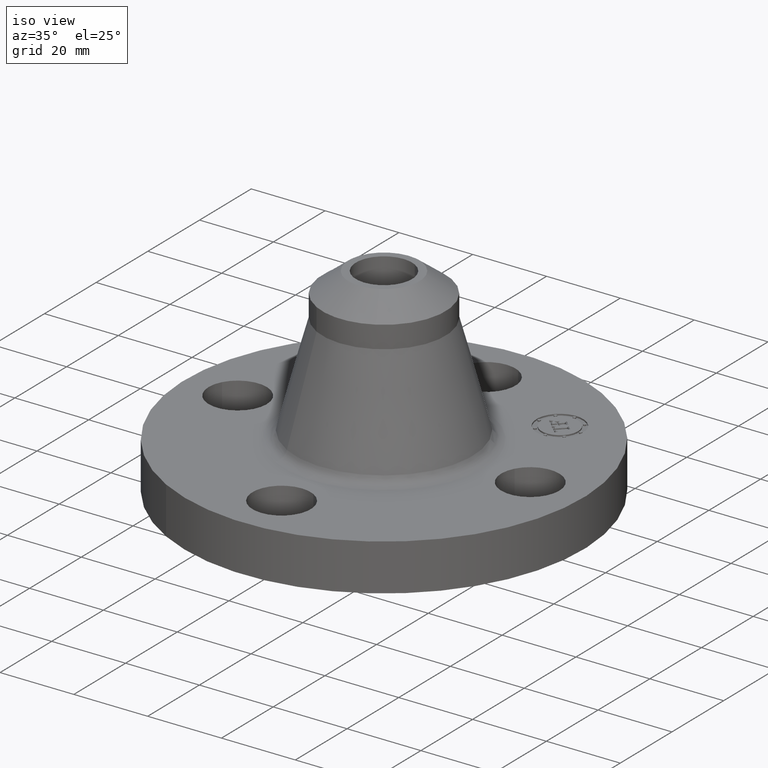
[diagram: clean part render]
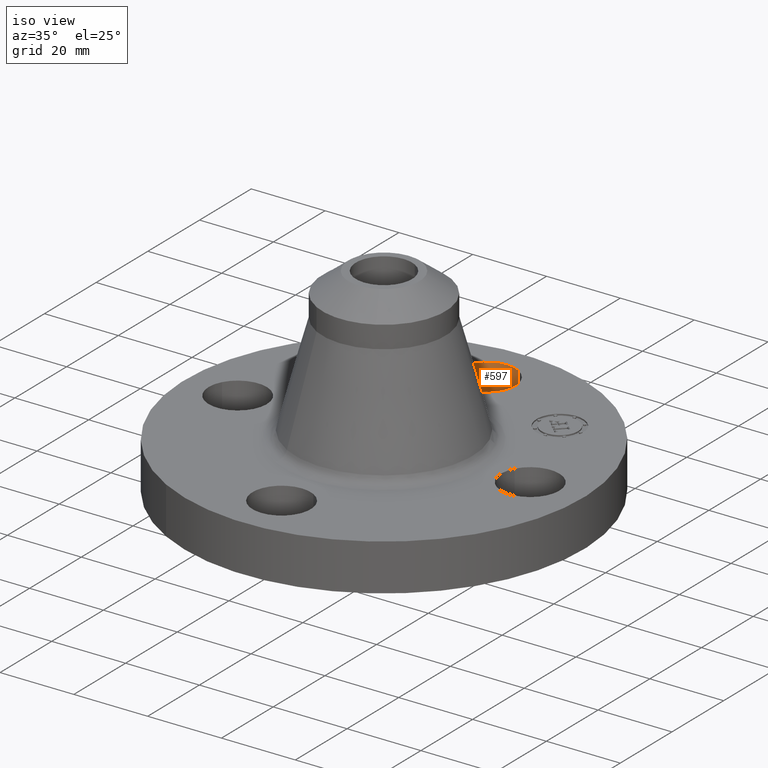
[diagram: same view with one face highlighted and labeled with its STEP entity id]
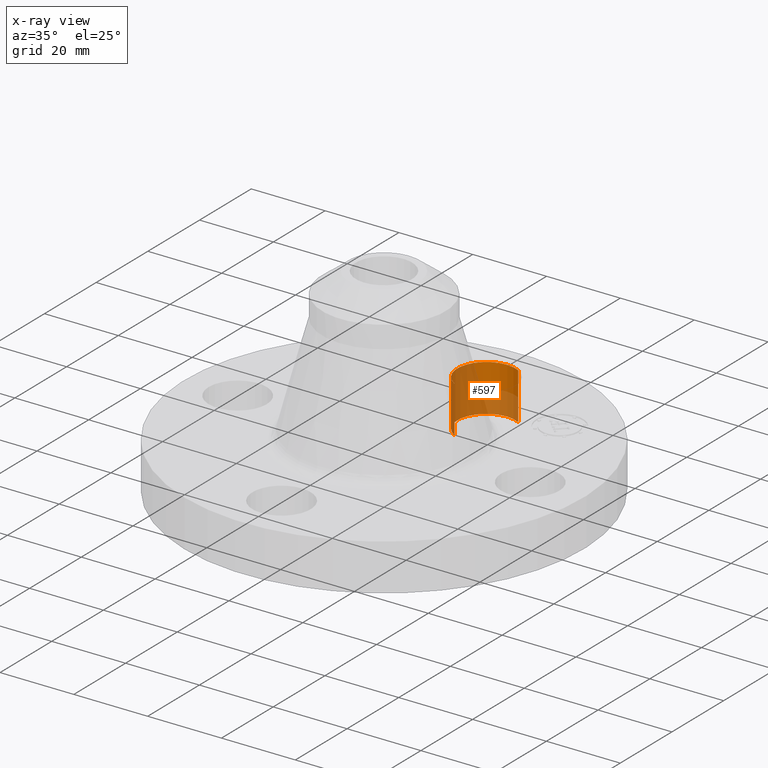
[diagram: x-ray of the same camera — body ghosted, the highlighted face saturated]
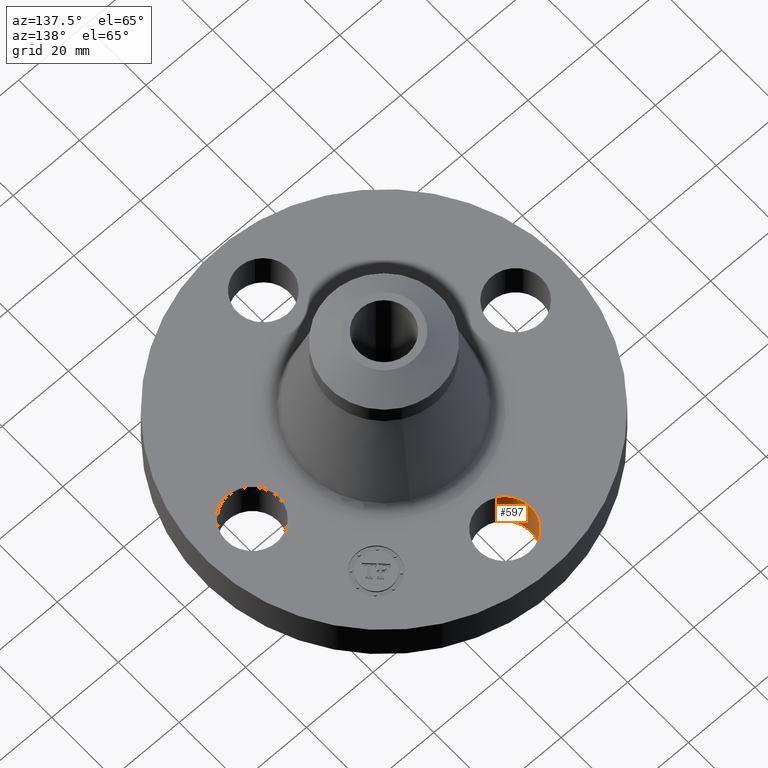
[diagram: same view with one face highlighted and labeled with its STEP entity id]
A machine part, iso view. The second image highlights one B-rep face of the part: STEP entity #597.
The next image is the same camera in x-ray: the body ghosted, the highlighted face saturated — about 67% of this face is hidden behind the body in this view.
A second angle (auxiliary view) of the same face is appended — the face is thin or edge-on in the first view.
In plain terms, the highlighted cylindrical surface (edge-blend (fillet) strip) has radius 7.874 mm, axis along (0, 0, -1).
Its self-contained STEP definition (entity closure, byte-faithful):
#550=AXIS2_PLACEMENT_3D('Circle Axis2P3D',#548,#549,$) ;
#570=AXIS2_PLACEMENT_3D('Cylinder Axis2P3D',#567,#568,#569) ;
#588=AXIS2_PLACEMENT_3D('Circle Axis2P3D',#586,#587,$) ;
#548=CARTESIAN_POINT('Axis2P3D Location',(-4.54579506146E-016,1.56000000001,0.)) ;
#552=CARTESIAN_POINT('Vertex',(-0.148621916968,1.28794940582,0.)) ;
#554=CARTESIAN_POINT('Vertex',(0.148621916968,1.83205059419,0.)) ;
#567=CARTESIAN_POINT('Axis2P3D Location',(-2.86567351002E-016,1.56000000001,0.496062992128)) ;
#572=CARTESIAN_POINT('Line Origine',(-0.148621916968,1.28794940582,0.250000000001)) ;
#576=CARTESIAN_POINT('Vertex',(-0.148621916968,1.28794940582,0.500000000002)) ;
#579=CARTESIAN_POINT('Line Origine',(0.148621916968,1.83205059419,0.250000000001)) ;
#583=CARTESIAN_POINT('Vertex',(0.148621916968,1.83205059419,0.500000000002)) ;
#586=CARTESIAN_POINT('Axis2P3D Location',(-2.86567351002E-016,1.56000000001,0.500000000002)) ;
#549=DIRECTION('Axis2P3D Direction',(0.,0.,-0.0393700787402)) ;
#568=DIRECTION('Axis2P3D Direction',(0.,0.,-0.0393700787402)) ;
#569=DIRECTION('Axis2P3D XDirection',(0.0188750212049,0.0345504945626,0.)) ;
#573=DIRECTION('Vector Direction',(0.,0.,-0.0393700787402)) ;
#580=DIRECTION('Vector Direction',(0.,0.,-0.0393700787402)) ;
#587=DIRECTION('Axis2P3D Direction',(0.,0.,-0.0393700787402)) ;
#574=VECTOR('Line Direction',#573,0.0393700787402) ;
#581=VECTOR('Line Direction',#580,0.0393700787402) ;
#592=ORIENTED_EDGE('',*,*,#578,.F.) ;
#593=ORIENTED_EDGE('',*,*,#556,.T.) ;
#594=ORIENTED_EDGE('',*,*,#585,.T.) ;
#595=ORIENTED_EDGE('',*,*,#590,.F.) ;
#597=ADVANCED_FACE('PartBody',(#596),#571,.F.) ;
#551=CIRCLE('generated circle',#550,0.310000000001) ;
#589=CIRCLE('generated circle',#588,0.310000000001) ;
#571=CYLINDRICAL_SURFACE('generated cylinder',#570,0.310000000001) ;
#556=EDGE_CURVE('',#553,#555,#551,.T.) ;
#578=EDGE_CURVE('',#553,#577,#575,.F.) ;
#585=EDGE_CURVE('',#555,#584,#582,.F.) ;
#590=EDGE_CURVE('',#577,#584,#589,.T.) ;
#591=EDGE_LOOP('',(#592,#593,#594,#595)) ;
#596=FACE_OUTER_BOUND('',#591,.T.) ;
#575=LINE('Line',#572,#574) ;
#582=LINE('Line',#579,#581) ;
#553=VERTEX_POINT('',#552) ;
#555=VERTEX_POINT('',#554) ;
#577=VERTEX_POINT('',#576) ;
#584=VERTEX_POINT('',#583) ;